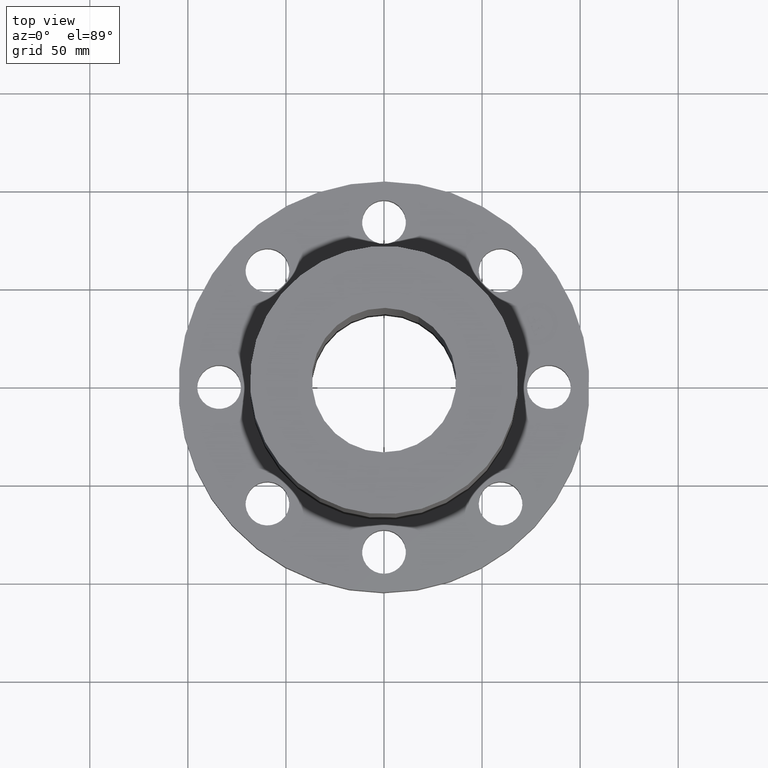
[diagram: clean part render]
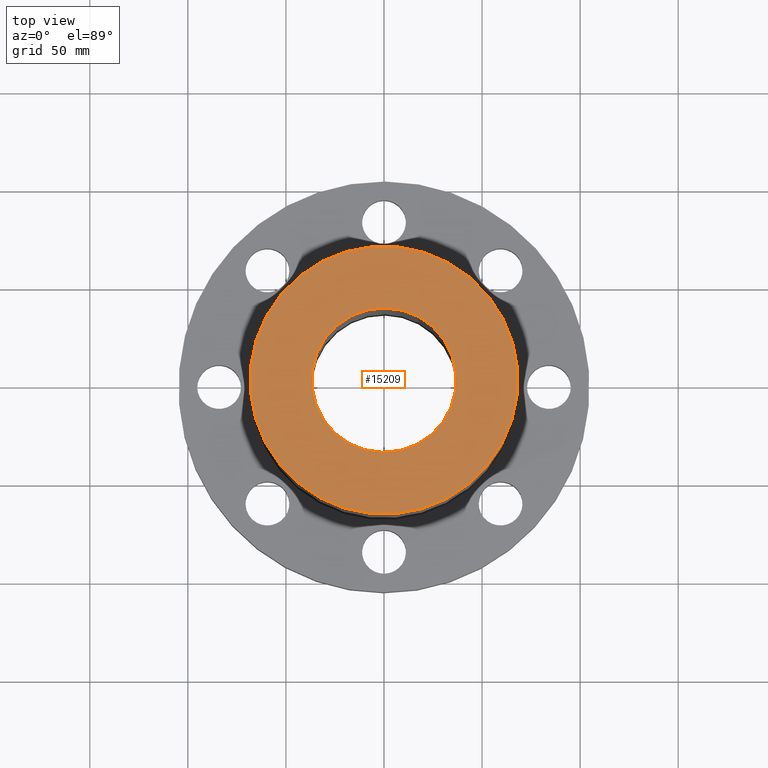
[diagram: same view with one face highlighted and labeled with its STEP entity id]
A machine part, top view. The second image highlights one B-rep face of the part: STEP entity #15209.
In plain terms, the highlighted planar face has unit normal (0, 0, -1).
Its self-contained STEP definition (entity closure, byte-faithful):
#4405=AXIS2_PLACEMENT_3D('Circle Axis2P3D',#4403,#4404,$) ;
#4424=AXIS2_PLACEMENT_3D('Circle Axis2P3D',#4422,#4423,$) ;
#15185=AXIS2_PLACEMENT_3D('Plane Axis2P3D',#15182,#15183,#15184) ;
#15193=AXIS2_PLACEMENT_3D('Circle Axis2P3D',#15191,#15192,$) ;
#15202=AXIS2_PLACEMENT_3D('Circle Axis2P3D',#15200,#15201,$) ;
#4400=CARTESIAN_POINT('Vertex',(1.28965469885,2.36069709149,8.93750000004)) ;
#4403=CARTESIAN_POINT('Axis2P3D Location',(0.,0.,8.93750000004)) ;
#4407=CARTESIAN_POINT('Vertex',(-1.28965469885,-2.36069709149,8.93750000004)) ;
#4422=CARTESIAN_POINT('Axis2P3D Location',(0.,0.,8.93750000004)) ;
#15182=CARTESIAN_POINT('Axis2P3D Location',(0.,2.69000000001,8.93750000004)) ;
#15191=CARTESIAN_POINT('Axis2P3D Location',(0.,0.,8.93750000004)) ;
#15195=CARTESIAN_POINT('Vertex',(-0.695167030979,-1.27249471475,8.93750000004)) ;
#15197=CARTESIAN_POINT('Vertex',(0.695167030979,1.27249471475,8.93750000004)) ;
#15200=CARTESIAN_POINT('Axis2P3D Location',(0.,0.,8.93750000004)) ;
#4404=DIRECTION('Axis2P3D Direction',(0.,0.,-0.0393700787402)) ;
#4423=DIRECTION('Axis2P3D Direction',(0.,0.,-0.0393700787402)) ;
#15183=DIRECTION('Axis2P3D Direction',(0.,0.,-0.0393700787402)) ;
#15184=DIRECTION('Axis2P3D XDirection',(0.0393700787402,0.,0.)) ;
#15192=DIRECTION('Axis2P3D Direction',(0.,0.,-0.0393700787402)) ;
#15201=DIRECTION('Axis2P3D Direction',(0.,0.,-0.0393700787402)) ;
#15188=ORIENTED_EDGE('',*,*,#4409,.F.) ;
#15189=ORIENTED_EDGE('',*,*,#4426,.F.) ;
#15206=ORIENTED_EDGE('',*,*,#15199,.T.) ;
#15207=ORIENTED_EDGE('',*,*,#15204,.T.) ;
#15208=FACE_BOUND('',#15205,.T.) ;
#15209=ADVANCED_FACE('PartBody',(#15190,#15208),#15186,.F.) ;
#4406=CIRCLE('generated circle',#4405,2.69000000001) ;
#4425=CIRCLE('generated circle',#4424,2.69000000001) ;
#15194=CIRCLE('generated circle',#15193,1.45000000001) ;
#15203=CIRCLE('generated circle',#15202,1.45000000001) ;
#4409=EDGE_CURVE('',#4401,#4408,#4406,.T.) ;
#4426=EDGE_CURVE('',#4408,#4401,#4425,.T.) ;
#15199=EDGE_CURVE('',#15196,#15198,#15194,.T.) ;
#15204=EDGE_CURVE('',#15198,#15196,#15203,.T.) ;
#15187=EDGE_LOOP('',(#15188,#15189)) ;
#15205=EDGE_LOOP('',(#15206,#15207)) ;
#15190=FACE_OUTER_BOUND('',#15187,.T.) ;
#15186=PLANE('',#15185) ;
#4401=VERTEX_POINT('',#4400) ;
#4408=VERTEX_POINT('',#4407) ;
#15196=VERTEX_POINT('',#15195) ;
#15198=VERTEX_POINT('',#15197) ;